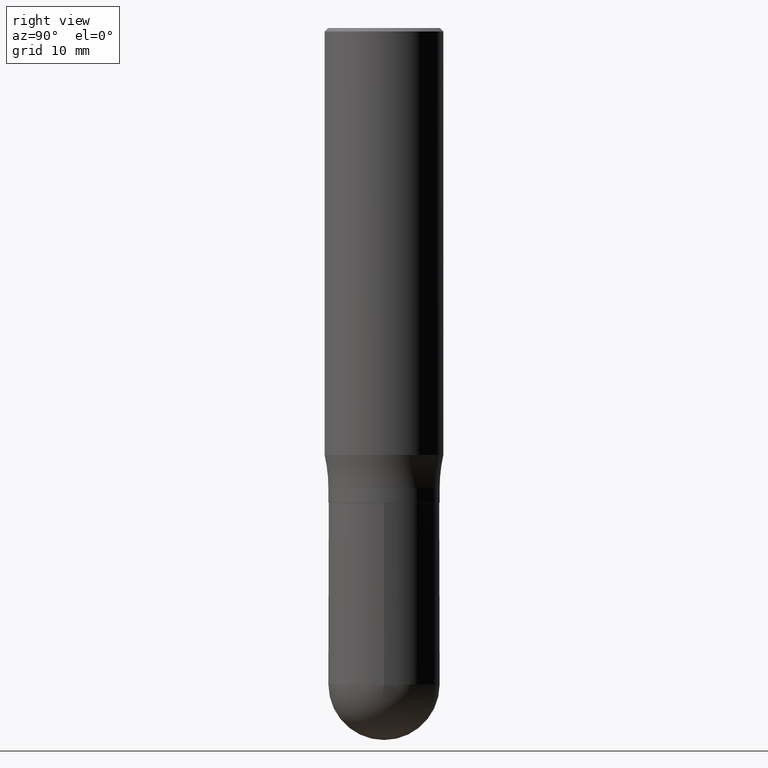
[diagram: clean part render]
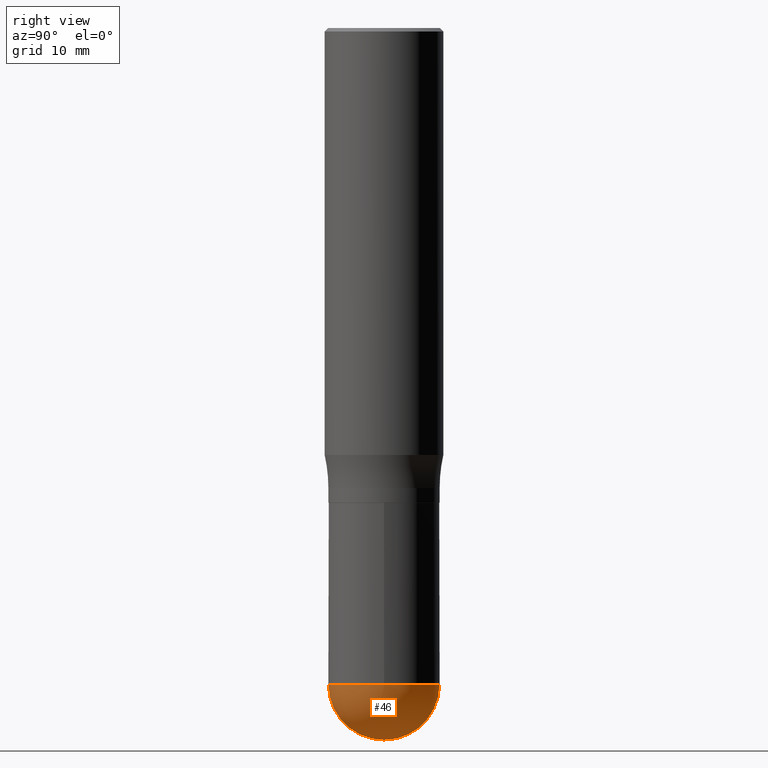
[diagram: same view with one face highlighted and labeled with its STEP entity id]
A machine part, right view. The second image highlights one B-rep face of the part: STEP entity #46.
In plain terms, the highlighted spherical surface has radius 5.9538 mm.
Its self-contained STEP definition (entity closure, byte-faithful):
#19 = VERTEX_POINT ( 'NONE', #179 ) ;
#38 = EDGE_CURVE ( 'NONE', #290, #60, #314, .T. ) ;
#40 = CARTESIAN_POINT ( 'NONE',  ( 6.763188530385614545E-29, -9.656040790704603926E-15, -2.765600000000000058 ) ) ;
#46 = ADVANCED_FACE ( 'NONE', ( #241 ), #361, .T. ) ;
#58 = EDGE_CURVE ( 'NONE', #290, #406, #161, .T. ) ;
#60 = VERTEX_POINT ( 'NONE', #438 ) ;
#68 = ORIENTED_EDGE ( 'NONE', *, *, #362, .F. ) ;
#77 = CARTESIAN_POINT ( 'NONE',  ( 6.764522589796733920E-29, -9.654130341697934439E-15, -2.765600000000000058 ) ) ;
#94 = DIRECTION ( 'NONE',  ( 1.000000000000000000, -6.982962677686265922E-15, 4.883557194083112340E-29 ) ) ;
#110 = ORIENTED_EDGE ( 'NONE', *, *, #38, .T. ) ;
#138 = DIRECTION ( 'NONE',  ( -1.000000000000000000, 7.105427357601001070E-15, -4.926315508542082329E-29 ) ) ;
#140 = AXIS2_PLACEMENT_3D ( 'NONE', #240, #195, #168 ) ;
#161 = CIRCLE ( 'NONE', #497, 0.2344000000000000528 ) ;
#168 = DIRECTION ( 'NONE',  ( 1.000000000000000000, -6.982962677686269077E-15, 0.000000000000000000 ) ) ;
#171 = DIRECTION ( 'NONE',  ( -1.000000000000000000, 6.982962677686265922E-15, -4.883557194083112901E-29 ) ) ;
#179 = CARTESIAN_POINT ( 'NONE',  ( 0.2344000000000000250, -9.956308185845112006E-15, -2.765600000000000058 ) ) ;
#184 = AXIS2_PLACEMENT_3D ( 'NONE', #40, #392, #394 ) ;
#195 = DIRECTION ( 'NONE',  ( -2.445468806185136597E-29, 3.491481338843145583E-15, 1.000000000000000000 ) ) ;
#198 = ORIENTED_EDGE ( 'NONE', *, *, #393, .F. ) ;
#206 = AXIS2_PLACEMENT_3D ( 'NONE', #440, #94, #480 ) ;
#229 = CARTESIAN_POINT ( 'NONE',  ( 7.347763026875712115E-29, -1.045818070703676051E-14, -3.000000000000000444 ) ) ;
#240 = CARTESIAN_POINT ( 'NONE',  ( 6.763188530385614545E-29, -9.656040790704603926E-15, -2.765600000000000058 ) ) ;
#241 = FACE_OUTER_BOUND ( 'NONE', #346, .T. ) ;
#252 = CIRCLE ( 'NONE', #140, 0.2344000000000000250 ) ;
#287 = DIRECTION ( 'NONE',  ( 6.982962677686265922E-15, 1.000000000000000000, -2.330928322239131685E-15 ) ) ;
#290 = VERTEX_POINT ( 'NONE', #229 ) ;
#314 = CIRCLE ( 'NONE', #206, 0.2344000000000000528 ) ;
#317 = CIRCLE ( 'NONE', #184, 0.2344000000000000250 ) ;
#346 = EDGE_LOOP ( 'NONE', ( #395, #110, #68, #198 ) ) ;
#361 = SPHERICAL_SURFACE ( 'NONE', #377, 0.2344000000000000528 ) ;
#362 = EDGE_CURVE ( 'NONE', #19, #60, #317, .T. ) ;
#377 = AXIS2_PLACEMENT_3D ( 'NONE', #444, #171, #287 ) ;
#392 = DIRECTION ( 'NONE',  ( -2.445468806185136597E-29, 3.491481338843145583E-15, 1.000000000000000000 ) ) ;
#393 = EDGE_CURVE ( 'NONE', #406, #19, #252, .T. ) ;
#394 = DIRECTION ( 'NONE',  ( 1.000000000000000000, -6.982962677686269077E-15, 0.000000000000000000 ) ) ;
#395 = ORIENTED_EDGE ( 'NONE', *, *, #58, .F. ) ;
#406 = VERTEX_POINT ( 'NONE', #435 ) ;
#409 = DIRECTION ( 'NONE',  ( -7.105427357601001070E-15, -1.000000000000000000, 0.000000000000000000 ) ) ;
#435 = CARTESIAN_POINT ( 'NONE',  ( -1.665512172621607171E-15, -0.2344000000000097395, -2.765599999999999614 ) ) ;
#438 = CARTESIAN_POINT ( 'NONE',  ( 1.636806451649728555E-15, 0.2343999999999903938, -2.765600000000000502 ) ) ;
#440 = CARTESIAN_POINT ( 'NONE',  ( 6.764522589796733920E-29, -9.654130341697934439E-15, -2.765600000000000058 ) ) ;
#444 = CARTESIAN_POINT ( 'NONE',  ( 6.764522589796733920E-29, -9.654130341697934439E-15, -2.765600000000000058 ) ) ;
#480 = DIRECTION ( 'NONE',  ( 6.982962677686265922E-15, 1.000000000000000000, 0.000000000000000000 ) ) ;
#497 = AXIS2_PLACEMENT_3D ( 'NONE', #77, #138, #409 ) ;